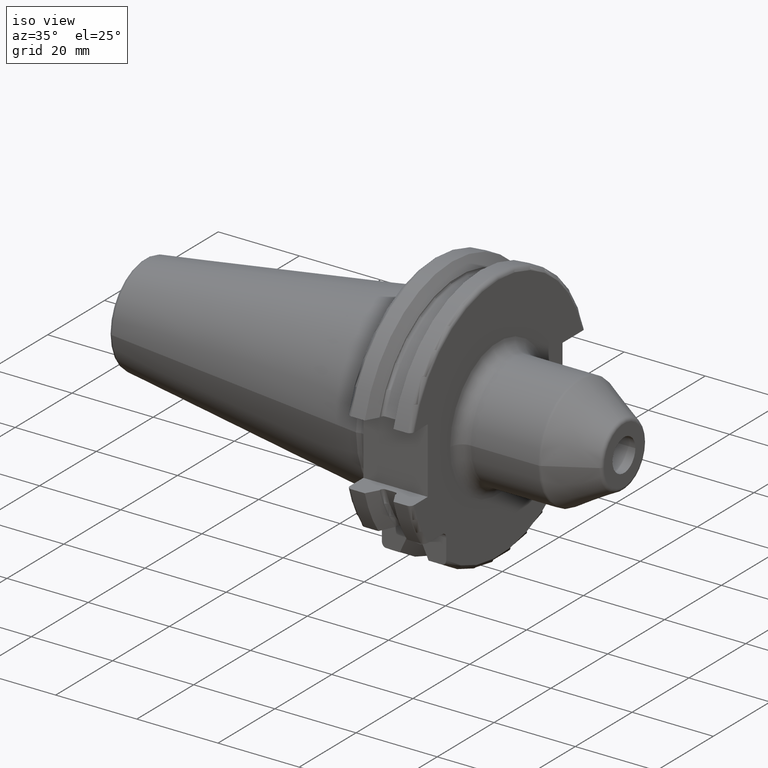
[diagram: clean part render]
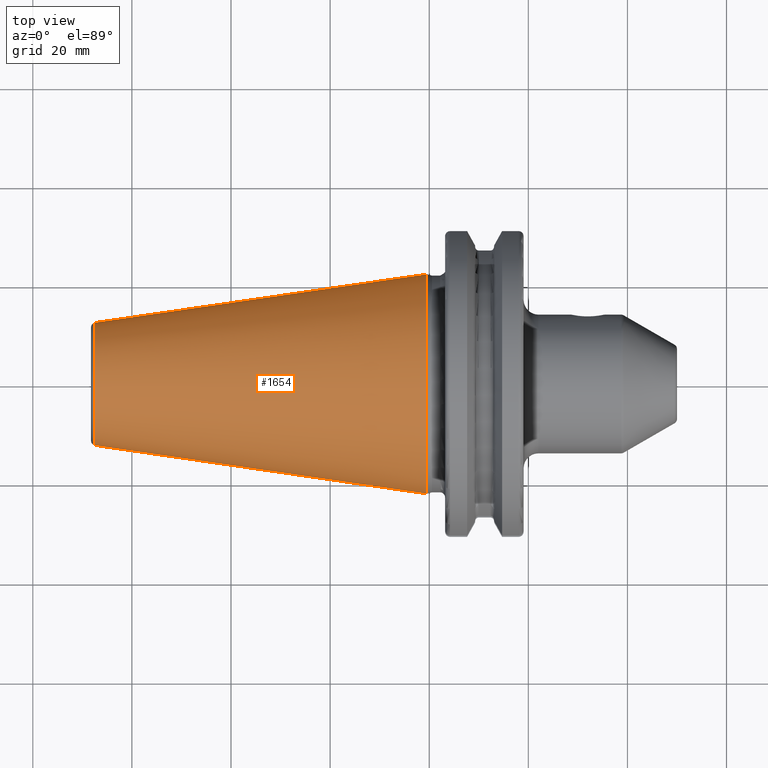
[diagram: tour spotlight — one face highlighted and labeled with its STEP entity id]
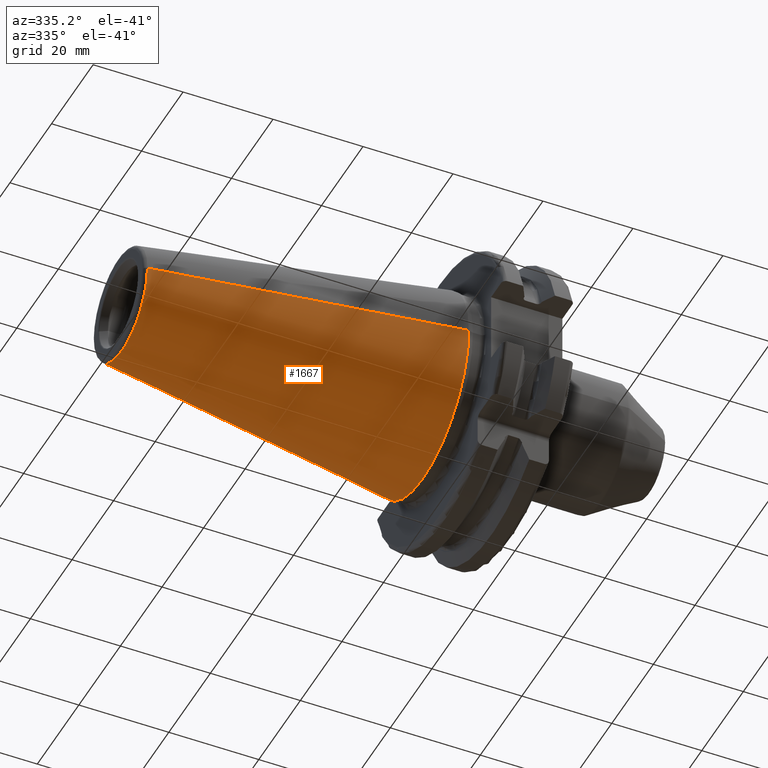
[diagram: tour spotlight — one face highlighted and labeled with its STEP entity id]
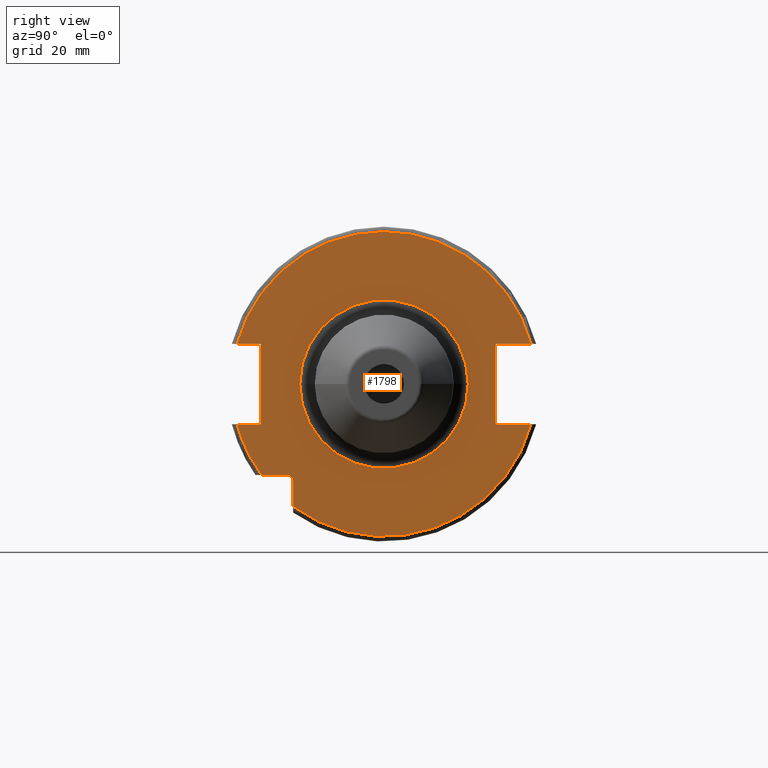
[diagram: tour spotlight — one face highlighted and labeled with its STEP entity id]
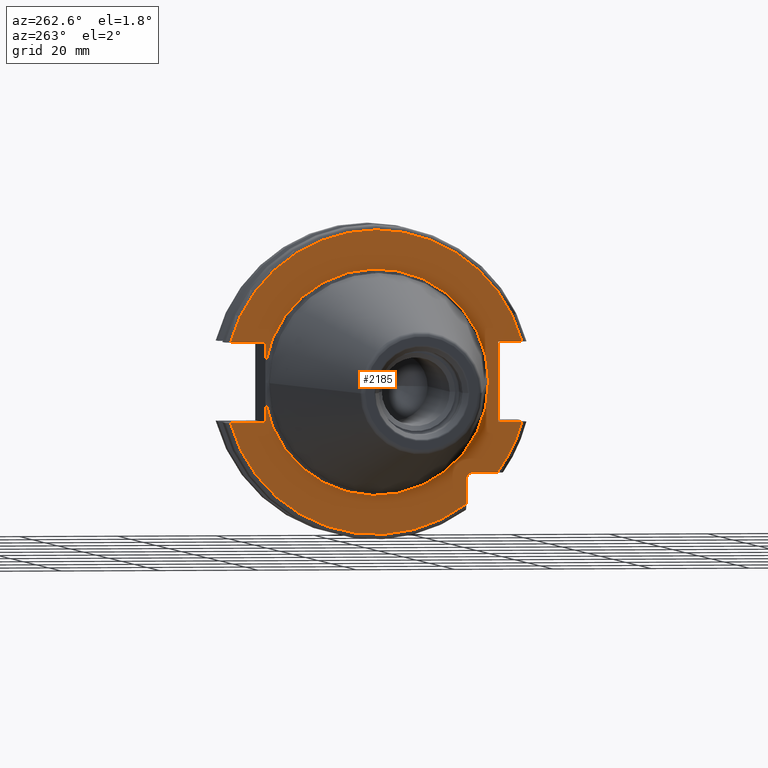
[diagram: tour spotlight — one face highlighted and labeled with its STEP entity id]
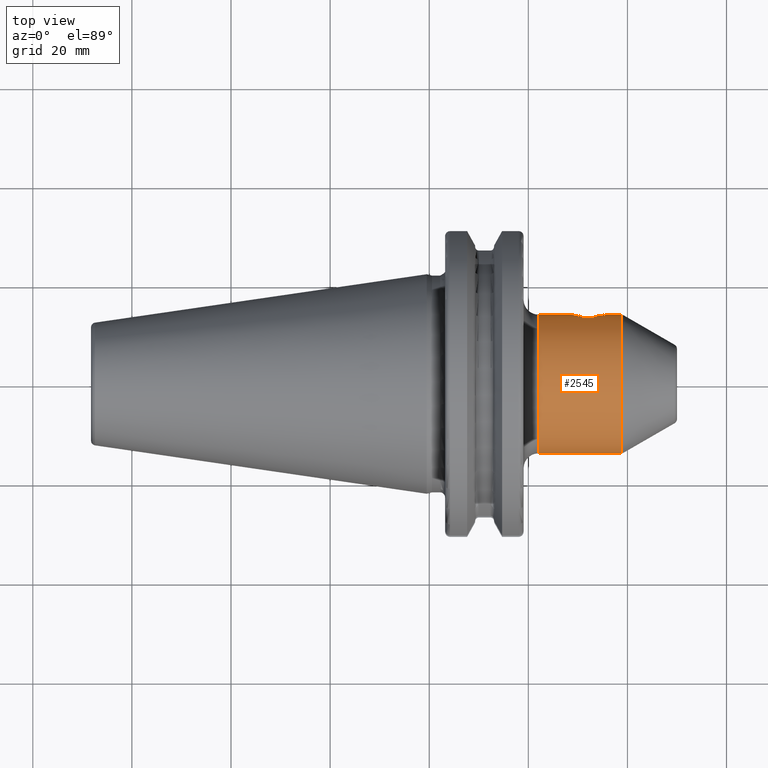
[diagram: tour spotlight — one face highlighted and labeled with its STEP entity id]
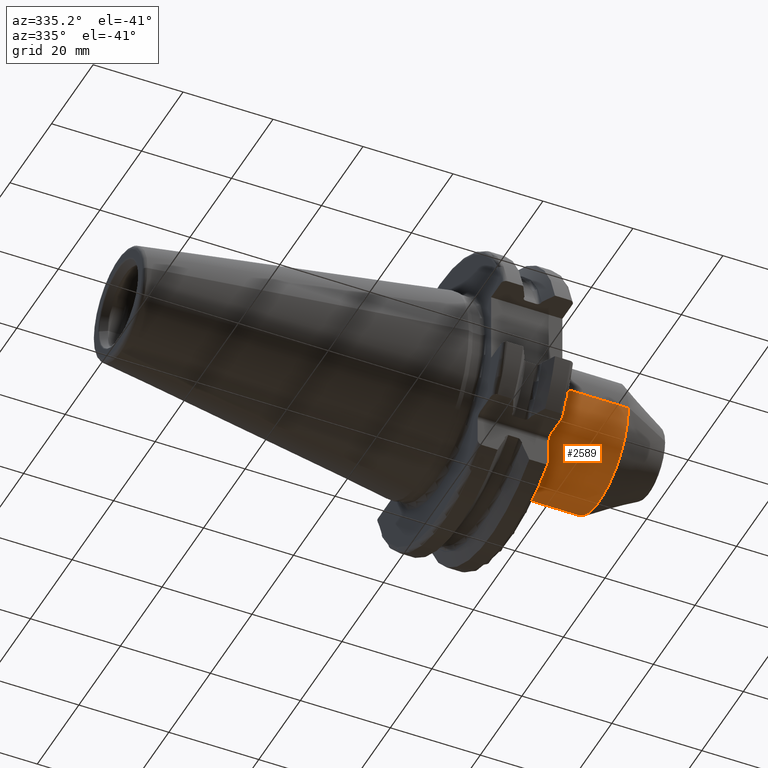
[diagram: tour spotlight — one face highlighted and labeled with its STEP entity id]
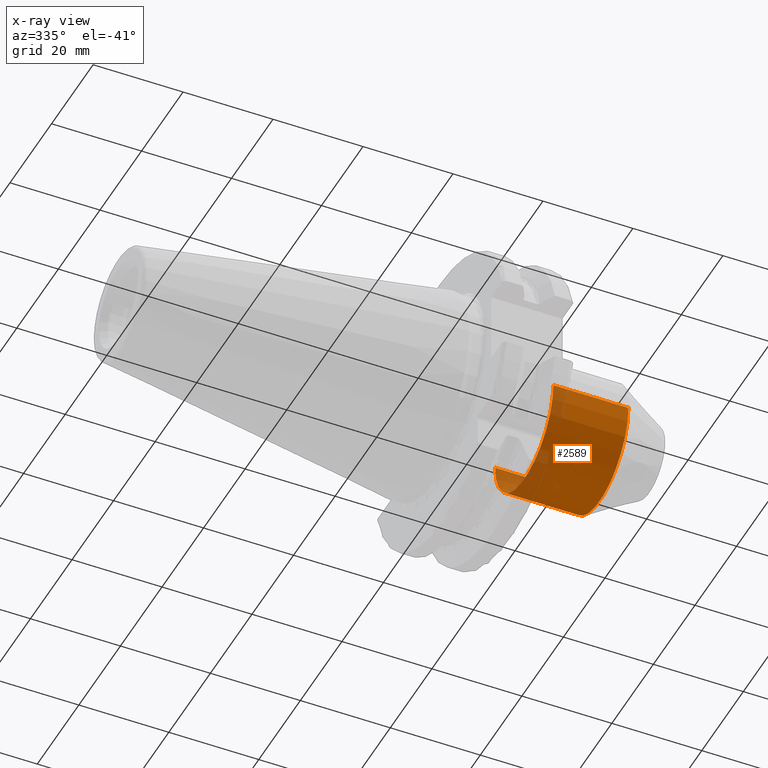
[diagram: x-ray of the same camera — body ghosted, this tour face saturated]
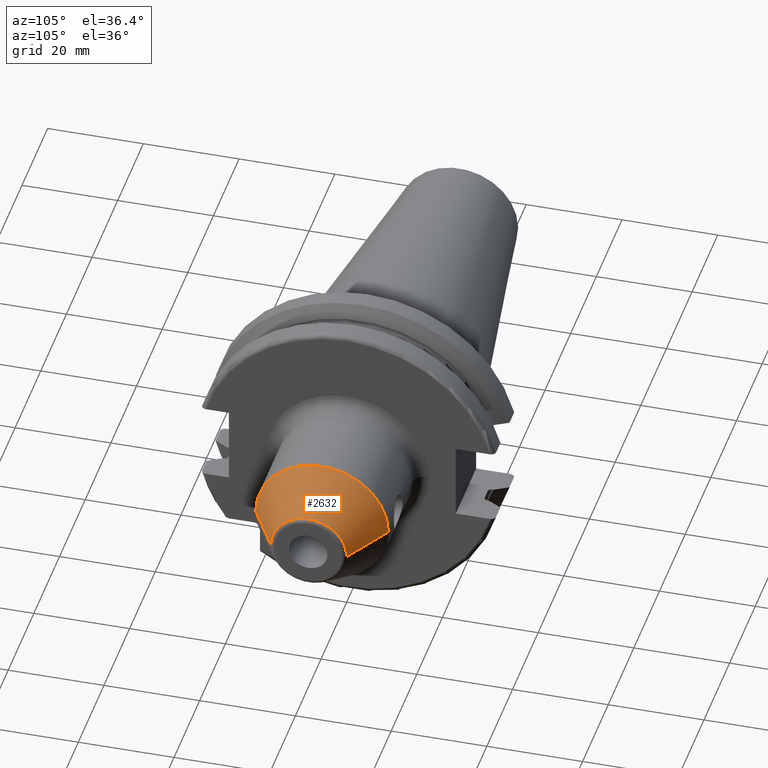
[diagram: tour spotlight — one face highlighted and labeled with its STEP entity id]
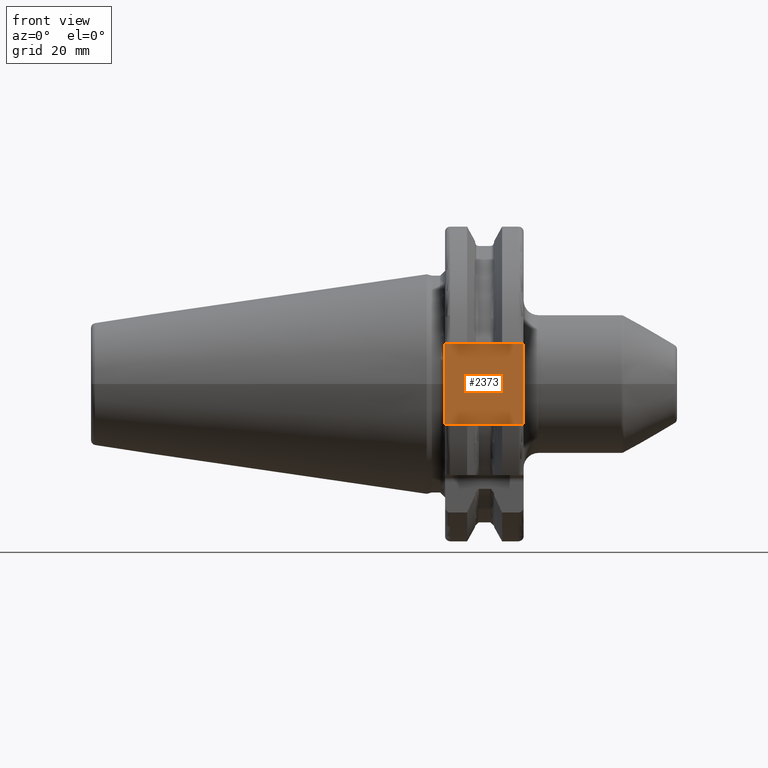
[diagram: tour spotlight — one face highlighted and labeled with its STEP entity id]
A machine part: a face-by-face anatomy tour. The part has 99 B-rep faces; the first image is the clean iso view, then the 8 largest visible faces are spotlighted one at a time (largest first), each with its STEP entity span.

Face 1 — top view, entity #1654. In plain terms, the highlighted conical surface has half-angle 8.298 deg.
Definition (entity closure, byte-faithful):
#37=CARTESIAN_POINT('',(-6.743710273571E1,0.E0,0.E0));
#38=DIRECTION('',(1.E0,0.E0,0.E0));
#39=DIRECTION('',(0.E0,1.E0,0.E0));
#40=AXIS2_PLACEMENT_3D('',#37,#38,#39);
#42=CARTESIAN_POINT('',(-4.896823332305E-1,0.E0,0.E0));
#43=DIRECTION('',(1.E0,0.E0,0.E0));
#44=DIRECTION('',(0.E0,1.E0,0.E0));
#45=AXIS2_PLACEMENT_3D('',#42,#43,#44);
#47=DIRECTION('',(-9.895312636440E-1,-1.443186691705E-1,0.E0));
#48=VECTOR('',#47,6.765568998391E1);
#49=CARTESIAN_POINT('',(-4.896823332305E-1,2.215358204157E1,0.E0));
#50=LINE('',#49,#48);
#51=DIRECTION('',(-9.895312636440E-1,1.443186691705E-1,0.E0));
#52=VECTOR('',#51,6.765568998391E1);
#53=CARTESIAN_POINT('',(-4.896823332305E-1,-2.215358204157E1,0.E0));
#54=LINE('',#53,#52);
#1330=CARTESIAN_POINT('',(-6.743710273571E1,1.238960290128E1,0.E0));
#1332=VERTEX_POINT('',#1330);
#1334=CARTESIAN_POINT('',(-6.743710273571E1,-1.238960290128E1,0.E0));
#1336=VERTEX_POINT('',#1334);
#1398=CARTESIAN_POINT('',(-4.896823332305E-1,2.215358204157E1,0.E0));
#1399=VERTEX_POINT('',#1398);
#1400=CARTESIAN_POINT('',(-4.896823332305E-1,-2.215358204157E1,0.E0));
#1401=VERTEX_POINT('',#1400);
#1640=CARTESIAN_POINT('',(-3.396339253447E1,0.E0,0.E0));
#1641=DIRECTION('',(1.E0,0.E0,0.E0));
#1642=DIRECTION('',(0.E0,-1.E0,0.E0));
#1643=AXIS2_PLACEMENT_3D('',#1640,#1641,#1642);
#1644=CONICAL_SURFACE('',#1643,1.727159247143E1,8.297826828206E0);
#1646=ORIENTED_EDGE('',*,*,#1645,.F.);
#1648=ORIENTED_EDGE('',*,*,#1647,.T.);
#1650=ORIENTED_EDGE('',*,*,#1649,.T.);
#1651=ORIENTED_EDGE('',*,*,#1633,.F.);
#1652=EDGE_LOOP('',(#1646,#1648,#1650,#1651));
#1653=FACE_OUTER_BOUND('',#1652,.F.);
#1654=ADVANCED_FACE('',(#1653),#1644,.T.);
#41=CIRCLE('',#40,1.238960290128E1);
#46=CIRCLE('',#45,2.215358204157E1);
#1633=EDGE_CURVE('',#1332,#1336,#41,.T.);
#1645=EDGE_CURVE('',#1399,#1332,#50,.T.);
#1647=EDGE_CURVE('',#1399,#1401,#46,.T.);
#1649=EDGE_CURVE('',#1401,#1336,#54,.T.);

Face 2 — auxiliary view, entity #1667. In plain terms, the highlighted conical surface has half-angle 8.298 deg.
Definition (entity closure, byte-faithful):
#32=CARTESIAN_POINT('',(-6.743710273571E1,0.E0,0.E0));
#33=DIRECTION('',(-1.E0,0.E0,0.E0));
#34=DIRECTION('',(0.E0,1.E0,0.E0));
#35=AXIS2_PLACEMENT_3D('',#32,#33,#34);
#47=DIRECTION('',(-9.895312636440E-1,-1.443186691705E-1,0.E0));
#48=VECTOR('',#47,6.765568998391E1);
#49=CARTESIAN_POINT('',(-4.896823332305E-1,2.215358204157E1,0.E0));
#50=LINE('',#49,#48);
#51=DIRECTION('',(-9.895312636440E-1,1.443186691705E-1,0.E0));
#52=VECTOR('',#51,6.765568998391E1);
#53=CARTESIAN_POINT('',(-4.896823332305E-1,-2.215358204157E1,0.E0));
#54=LINE('',#53,#52);
#55=CARTESIAN_POINT('',(-4.896823332305E-1,0.E0,0.E0));
#56=DIRECTION('',(-1.E0,0.E0,0.E0));
#57=DIRECTION('',(0.E0,1.E0,0.E0));
#58=AXIS2_PLACEMENT_3D('',#55,#56,#57);
#1330=CARTESIAN_POINT('',(-6.743710273571E1,1.238960290128E1,0.E0));
#1332=VERTEX_POINT('',#1330);
#1334=CARTESIAN_POINT('',(-6.743710273571E1,-1.238960290128E1,0.E0));
#1336=VERTEX_POINT('',#1334);
#1398=CARTESIAN_POINT('',(-4.896823332305E-1,2.215358204157E1,0.E0));
#1399=VERTEX_POINT('',#1398);
#1400=CARTESIAN_POINT('',(-4.896823332305E-1,-2.215358204157E1,0.E0));
#1401=VERTEX_POINT('',#1400);
#1655=CARTESIAN_POINT('',(-3.396339253447E1,0.E0,0.E0));
#1656=DIRECTION('',(1.E0,0.E0,0.E0));
#1657=DIRECTION('',(0.E0,-1.E0,0.E0));
#1658=AXIS2_PLACEMENT_3D('',#1655,#1656,#1657);
#1659=CONICAL_SURFACE('',#1658,1.727159247143E1,8.297826828206E0);
#1660=ORIENTED_EDGE('',*,*,#1645,.T.);
#1661=ORIENTED_EDGE('',*,*,#1622,.T.);
#1662=ORIENTED_EDGE('',*,*,#1649,.F.);
#1664=ORIENTED_EDGE('',*,*,#1663,.F.);
#1665=EDGE_LOOP('',(#1660,#1661,#1662,#1664));
#1666=FACE_OUTER_BOUND('',#1665,.F.);
#1667=ADVANCED_FACE('',(#1666),#1659,.T.);
#36=CIRCLE('',#35,1.238960290128E1);
#59=CIRCLE('',#58,2.215358204157E1);
#1622=EDGE_CURVE('',#1332,#1336,#36,.T.);
#1645=EDGE_CURVE('',#1399,#1332,#50,.T.);
#1649=EDGE_CURVE('',#1401,#1336,#54,.T.);
#1663=EDGE_CURVE('',#1399,#1401,#59,.T.);

Face 3 — right view, entity #1798. In plain terms, the highlighted planar face has unit normal (1, 0, 0).
Definition (entity closure, byte-faithful):
#126=DIRECTION('',(0.E0,0.E0,1.E0));
#127=VECTOR('',#126,4.990259339464E0);
#128=CARTESIAN_POINT('',(1.905E1,-1.835E1,-2.469025933946E1));
#129=LINE('',#128,#127);
#130=DIRECTION('',(0.E0,-1.E0,0.E0));
#131=VECTOR('',#130,4.990259339464E0);
#132=CARTESIAN_POINT('',(1.905E1,-1.97E1,-1.835E1));
#133=LINE('',#132,#131);
#134=DIRECTION('',(0.E0,1.E0,0.E0));
#135=VECTOR('',#134,4.826950757280E0);
#136=CARTESIAN_POINT('',(1.905E1,-2.967695075728E1,-8.1E0));
#137=LINE('',#136,#135);
#138=DIRECTION('',(0.E0,0.E0,1.E0));
#139=VECTOR('',#138,1.62E1);
#140=CARTESIAN_POINT('',(1.905E1,-2.485E1,-8.1E0));
#141=LINE('',#140,#139);
#142=DIRECTION('',(0.E0,1.E0,0.E0));
#143=VECTOR('',#142,4.826950757280E0);
#144=CARTESIAN_POINT('',(1.905E1,-2.967695075728E1,8.1E0));
#145=LINE('',#144,#143);
#146=DIRECTION('',(0.E0,-1.E0,0.E0));
#147=VECTOR('',#146,7.126950757280E0);
#148=CARTESIAN_POINT('',(1.905E1,2.967695075728E1,8.1E0));
#149=LINE('',#148,#147);
#150=DIRECTION('',(0.E0,0.E0,-1.E0));
#151=VECTOR('',#150,1.62E1);
#152=CARTESIAN_POINT('',(1.905E1,2.255E1,8.1E0));
#153=LINE('',#152,#151);
#154=DIRECTION('',(0.E0,-1.E0,0.E0));
#155=VECTOR('',#154,7.126950757280E0);
#156=CARTESIAN_POINT('',(1.905E1,2.967695075728E1,-8.1E0));
#157=LINE('',#156,#155);
#158=CARTESIAN_POINT('',(1.905E1,0.E0,0.E0));
#159=DIRECTION('',(1.E0,0.E0,0.E0));
#160=DIRECTION('',(0.E0,-1.E0,0.E0));
#161=AXIS2_PLACEMENT_3D('',#158,#159,#160);
#163=CARTESIAN_POINT('',(1.905E1,0.E0,0.E0));
#164=DIRECTION('',(1.E0,0.E0,0.E0));
#165=DIRECTION('',(0.E0,1.E0,0.E0));
#166=AXIS2_PLACEMENT_3D('',#163,#164,#165);
#194=CARTESIAN_POINT('',(1.905E1,0.E0,0.E0));
#195=DIRECTION('',(-1.E0,0.E0,0.E0));
#196=DIRECTION('',(0.E0,9.647119303464E-1,-2.633075985372E-1));
#197=AXIS2_PLACEMENT_3D('',#194,#195,#196);
#210=CARTESIAN_POINT('',(1.905E1,0.E0,0.E0));
#211=DIRECTION('',(-1.E0,0.E0,0.E0));
#212=DIRECTION('',(0.E0,-8.026089992512E-1,-5.965054855750E-1));
#213=AXIS2_PLACEMENT_3D('',#210,#211,#212);
#525=CARTESIAN_POINT('',(1.905E1,-1.97E1,-1.97E1));
#526=DIRECTION('',(-1.E0,0.E0,0.E0));
#527=DIRECTION('',(0.E0,0.E0,1.E0));
#528=AXIS2_PLACEMENT_3D('',#525,#526,#527);
#882=CARTESIAN_POINT('',(1.905E1,0.E0,0.E0));
#883=DIRECTION('',(1.E0,0.E0,0.E0));
#884=DIRECTION('',(0.E0,9.647119303464E-1,2.633075985372E-1));
#885=AXIS2_PLACEMENT_3D('',#882,#883,#884);
#1468=CARTESIAN_POINT('',(1.905E1,2.967695075728E1,8.1E0));
#1469=CARTESIAN_POINT('',(1.905E1,2.255E1,8.1E0));
#1470=VERTEX_POINT('',#1468);
#1471=VERTEX_POINT('',#1469);
#1472=CARTESIAN_POINT('',(1.905E1,2.255E1,-8.1E0));
#1473=VERTEX_POINT('',#1472);
#1474=CARTESIAN_POINT('',(1.905E1,2.967695075728E1,-8.1E0));
#1475=VERTEX_POINT('',#1474);
#1476=CARTESIAN_POINT('',(1.905E1,-2.967695075728E1,-8.1E0));
#1477=CARTESIAN_POINT('',(1.905E1,-2.485E1,-8.1E0));
#1478=VERTEX_POINT('',#1476);
#1479=VERTEX_POINT('',#1477);
#1480=CARTESIAN_POINT('',(1.905E1,-2.485E1,8.1E0));
#1481=VERTEX_POINT('',#1480);
#1482=CARTESIAN_POINT('',(1.905E1,-2.967695075728E1,8.1E0));
#1483=VERTEX_POINT('',#1482);
#1529=CARTESIAN_POINT('',(1.905E1,-1.835E1,-2.469025933946E1));
#1530=VERTEX_POINT('',#1529);
#1537=CARTESIAN_POINT('',(1.905E1,-1.97E1,-1.835E1));
#1538=CARTESIAN_POINT('',(1.905E1,-2.469025933946E1,-1.835E1));
#1539=VERTEX_POINT('',#1537);
#1540=VERTEX_POINT('',#1538);
#1541=CARTESIAN_POINT('',(1.905E1,-1.835E1,-1.97E1));
#1542=VERTEX_POINT('',#1541);
#1557=CARTESIAN_POINT('',(1.905E1,-1.7E1,0.E0));
#1558=CARTESIAN_POINT('',(1.905E1,1.7E1,0.E0));
#1559=VERTEX_POINT('',#1557);
#1560=VERTEX_POINT('',#1558);
#1762=CARTESIAN_POINT('',(1.905E1,0.E0,0.E0));
#1763=DIRECTION('',(1.E0,0.E0,0.E0));
#1764=DIRECTION('',(0.E0,-1.E0,0.E0));
#1765=AXIS2_PLACEMENT_3D('',#1762,#1763,#1764);
#1766=PLANE('',#1765);
#1768=ORIENTED_EDGE('',*,*,#1767,.T.);
#1770=ORIENTED_EDGE('',*,*,#1769,.F.);
#1772=ORIENTED_EDGE('',*,*,#1771,.T.);
#1774=ORIENTED_EDGE('',*,*,#1773,.T.);
#1776=ORIENTED_EDGE('',*,*,#1775,.T.);
#1778=ORIENTED_EDGE('',*,*,#1777,.T.);
#1780=ORIENTED_EDGE('',*,*,#1779,.F.);
#1782=ORIENTED_EDGE('',*,*,#1781,.F.);
#1784=ORIENTED_EDGE('',*,*,#1783,.T.);
#1785=ORIENTED_EDGE('',*,*,#1746,.T.);
#1787=ORIENTED_EDGE('',*,*,#1786,.F.);
#1789=ORIENTED_EDGE('',*,*,#1788,.T.);
#1790=EDGE_LOOP('',(#1768,#1770,#1772,#1774,#1776,#1778,#1780,#1782,#1784,#1785,
#1787,#1789));
#1791=FACE_OUTER_BOUND('',#1790,.F.);
#1793=ORIENTED_EDGE('',*,*,#1792,.T.);
#1795=ORIENTED_EDGE('',*,*,#1794,.T.);
#1796=EDGE_LOOP('',(#1793,#1795));
#1797=FACE_BOUND('',#1796,.F.);
#1798=ADVANCED_FACE('',(#1791,#1797),#1766,.T.);
#162=CIRCLE('',#161,1.7E1);
#167=CIRCLE('',#166,1.7E1);
#198=CIRCLE('',#197,3.07625E1);
#214=CIRCLE('',#213,3.07625E1);
#529=CIRCLE('',#528,1.35E0);
#886=CIRCLE('',#885,3.07625E1);
#1746=EDGE_CURVE('',#1471,#1473,#153,.T.);
#1767=EDGE_CURVE('',#1530,#1542,#129,.T.);
#1769=EDGE_CURVE('',#1539,#1542,#529,.T.);
#1771=EDGE_CURVE('',#1539,#1540,#133,.T.);
#1773=EDGE_CURVE('',#1540,#1478,#214,.T.);
#1775=EDGE_CURVE('',#1478,#1479,#137,.T.);
#1777=EDGE_CURVE('',#1479,#1481,#141,.T.);
#1779=EDGE_CURVE('',#1483,#1481,#145,.T.);
#1781=EDGE_CURVE('',#1470,#1483,#886,.T.);
#1783=EDGE_CURVE('',#1470,#1471,#149,.T.);
#1786=EDGE_CURVE('',#1475,#1473,#157,.T.);
#1788=EDGE_CURVE('',#1475,#1530,#198,.T.);
#1792=EDGE_CURVE('',#1559,#1560,#162,.T.);
#1794=EDGE_CURVE('',#1560,#1559,#167,.T.);

Face 4 — auxiliary view, entity #2185. In plain terms, the highlighted planar face has unit normal (1, 0, 0).
Definition (entity closure, byte-faithful):
#117=CARTESIAN_POINT('',(3.2E0,0.E0,0.E0));
#118=DIRECTION('',(-1.E0,0.E0,0.E0));
#119=DIRECTION('',(0.E0,9.857923497268E-1,-1.679685780739E-1));
#120=AXIS2_PLACEMENT_3D('',#117,#118,#119);
#470=DIRECTION('',(0.E0,-1.E0,0.E0));
#471=VECTOR('',#470,4.990259339464E0);
#472=CARTESIAN_POINT('',(3.2E0,-1.97E1,-1.835E1));
#473=LINE('',#472,#471);
#474=DIRECTION('',(0.E0,0.E0,1.E0));
#475=VECTOR('',#474,4.990259339464E0);
#476=CARTESIAN_POINT('',(3.2E0,-1.835E1,-2.469025933946E1));
#477=LINE('',#476,#475);
#478=CARTESIAN_POINT('',(3.2E0,0.E0,0.E0));
#479=DIRECTION('',(-1.E0,0.E0,0.E0));
#480=DIRECTION('',(0.E0,9.647119303464E-1,-2.633075985372E-1));
#481=AXIS2_PLACEMENT_3D('',#478,#479,#480);
#483=DIRECTION('',(0.E0,-1.E0,0.E0));
#484=VECTOR('',#483,7.126950757280E0);
#485=CARTESIAN_POINT('',(3.2E0,2.967695075728E1,-8.1E0));
#486=LINE('',#485,#484);
#487=DIRECTION('',(0.E0,0.E0,-1.E0));
#488=VECTOR('',#487,4.257718776560E0);
#489=CARTESIAN_POINT('',(3.2E0,2.255E1,-3.842281223440E0));
#490=LINE('',#489,#488);
#491=DIRECTION('',(0.E0,0.E0,-1.E0));
#492=VECTOR('',#491,4.257718776560E0);
#493=CARTESIAN_POINT('',(3.2E0,2.255E1,8.1E0));
#494=LINE('',#493,#492);
#495=DIRECTION('',(0.E0,-1.E0,0.E0));
#496=VECTOR('',#495,7.126950757280E0);
#497=CARTESIAN_POINT('',(3.2E0,2.967695075728E1,8.1E0));
#498=LINE('',#497,#496);
#499=CARTESIAN_POINT('',(3.2E0,0.E0,0.E0));
#500=DIRECTION('',(1.E0,0.E0,0.E0));
#501=DIRECTION('',(0.E0,9.647119303464E-1,2.633075985372E-1));
#502=AXIS2_PLACEMENT_3D('',#499,#500,#501);
#504=DIRECTION('',(0.E0,1.E0,0.E0));
#505=VECTOR('',#504,4.826950757280E0);
#506=CARTESIAN_POINT('',(3.2E0,-2.967695075728E1,8.1E0));
#507=LINE('',#506,#505);
#508=DIRECTION('',(0.E0,0.E0,1.E0));
#509=VECTOR('',#508,1.62E1);
#510=CARTESIAN_POINT('',(3.2E0,-2.485E1,-8.1E0));
#511=LINE('',#510,#509);
#512=DIRECTION('',(0.E0,1.E0,0.E0));
#513=VECTOR('',#512,4.826950757280E0);
#514=CARTESIAN_POINT('',(3.2E0,-2.967695075728E1,-8.1E0));
#515=LINE('',#514,#513);
#516=CARTESIAN_POINT('',(3.2E0,0.E0,0.E0));
#517=DIRECTION('',(-1.E0,0.E0,0.E0));
#518=DIRECTION('',(0.E0,-8.026089992512E-1,-5.965054855750E-1));
#519=AXIS2_PLACEMENT_3D('',#516,#517,#518);
#530=CARTESIAN_POINT('',(3.2E0,-1.97E1,-1.97E1));
#531=DIRECTION('',(1.E0,0.E0,0.E0));
#532=DIRECTION('',(0.E0,1.E0,0.E0));
#533=AXIS2_PLACEMENT_3D('',#530,#531,#532);
#866=CARTESIAN_POINT('',(3.2E0,0.E0,0.E0));
#867=DIRECTION('',(1.E0,0.E0,0.E0));
#868=DIRECTION('',(0.E0,9.857923497268E-1,1.679685780739E-1));
#869=AXIS2_PLACEMENT_3D('',#866,#867,#868);
#1342=CARTESIAN_POINT('',(3.2E0,-2.2875E1,0.E0));
#1344=VERTEX_POINT('',#1342);
#1492=CARTESIAN_POINT('',(3.2E0,2.967695075728E1,8.1E0));
#1493=CARTESIAN_POINT('',(3.2E0,2.255E1,8.1E0));
#1494=VERTEX_POINT('',#1492);
#1495=VERTEX_POINT('',#1493);
#1496=CARTESIAN_POINT('',(3.2E0,2.255E1,3.842281223440E0));
#1497=VERTEX_POINT('',#1496);
#1498=CARTESIAN_POINT('',(3.2E0,2.255E1,-3.842281223440E0));
#1499=CARTESIAN_POINT('',(3.2E0,2.255E1,-8.1E0));
#1500=VERTEX_POINT('',#1498);
#1501=VERTEX_POINT('',#1499);
#1502=CARTESIAN_POINT('',(3.2E0,2.967695075728E1,-8.1E0));
#1503=VERTEX_POINT('',#1502);
#1504=CARTESIAN_POINT('',(3.2E0,-2.967695075728E1,-8.1E0));
#1505=CARTESIAN_POINT('',(3.2E0,-2.485E1,-8.1E0));
#1506=VERTEX_POINT('',#1504);
#1507=VERTEX_POINT('',#1505);
#1508=CARTESIAN_POINT('',(3.2E0,-2.485E1,8.1E0));
#1509=VERTEX_POINT('',#1508);
#1510=CARTESIAN_POINT('',(3.2E0,-2.967695075728E1,8.1E0));
#1511=VERTEX_POINT('',#1510);
#1535=CARTESIAN_POINT('',(3.2E0,-1.835E1,-2.469025933946E1));
#1536=VERTEX_POINT('',#1535);
#1543=CARTESIAN_POINT('',(3.2E0,-1.97E1,-1.835E1));
#1544=CARTESIAN_POINT('',(3.2E0,-2.469025933946E1,-1.835E1));
#1545=VERTEX_POINT('',#1543);
#1546=VERTEX_POINT('',#1544);
#1547=CARTESIAN_POINT('',(3.2E0,-1.835E1,-1.97E1));
#1548=VERTEX_POINT('',#1547);
#2156=CARTESIAN_POINT('',(3.2E0,0.E0,0.E0));
#2157=DIRECTION('',(1.E0,0.E0,0.E0));
#2158=DIRECTION('',(0.E0,-1.E0,0.E0));
#2159=AXIS2_PLACEMENT_3D('',#2156,#2157,#2158);
#2160=PLANE('',#2159);
#2162=ORIENTED_EDGE('',*,*,#2161,.F.);
#2164=ORIENTED_EDGE('',*,*,#2163,.F.);
#2165=ORIENTED_EDGE('',*,*,#1827,.F.);
#2167=ORIENTED_EDGE('',*,*,#2166,.F.);
#2168=ORIENTED_EDGE('',*,*,#1885,.T.);
#2169=ORIENTED_EDGE('',*,*,#1755,.F.);
#2170=ORIENTED_EDGE('',*,*,#1736,.T.);
#2172=ORIENTED_EDGE('',*,*,#2171,.F.);
#2173=ORIENTED_EDGE('',*,*,#1750,.F.);
#2174=ORIENTED_EDGE('',*,*,#1954,.F.);
#2175=ORIENTED_EDGE('',*,*,#2151,.T.);
#2176=ORIENTED_EDGE('',*,*,#2012,.T.);
#2178=ORIENTED_EDGE('',*,*,#2177,.F.);
#2180=ORIENTED_EDGE('',*,*,#2179,.F.);
#2182=ORIENTED_EDGE('',*,*,#2181,.F.);
#2183=EDGE_LOOP('',(#2162,#2164,#2165,#2167,#2168,#2169,#2170,#2172,#2173,#2174,
#2175,#2176,#2178,#2180,#2182));
#2184=FACE_OUTER_BOUND('',#2183,.F.);
#2185=ADVANCED_FACE('',(#2184),#2160,.F.);
#121=CIRCLE('',#120,2.2875E1);
#482=CIRCLE('',#481,3.07625E1);
#503=CIRCLE('',#502,3.07625E1);
#520=CIRCLE('',#519,3.07625E1);
#534=CIRCLE('',#533,1.35E0);
#870=CIRCLE('',#869,2.2875E1);
#1736=EDGE_CURVE('',#1500,#1344,#121,.T.);
#1750=EDGE_CURVE('',#1495,#1497,#494,.T.);
#1755=EDGE_CURVE('',#1500,#1501,#490,.T.);
#1827=EDGE_CURVE('',#1536,#1548,#477,.T.);
#1885=EDGE_CURVE('',#1503,#1501,#486,.T.);
#1954=EDGE_CURVE('',#1494,#1495,#498,.T.);
#2012=EDGE_CURVE('',#1511,#1509,#507,.T.);
#2151=EDGE_CURVE('',#1494,#1511,#503,.T.);
#2161=EDGE_CURVE('',#1545,#1546,#473,.T.);
#2163=EDGE_CURVE('',#1548,#1545,#534,.T.);
#2166=EDGE_CURVE('',#1503,#1536,#482,.T.);
#2171=EDGE_CURVE('',#1497,#1344,#870,.T.);
#2177=EDGE_CURVE('',#1507,#1509,#511,.T.);
#2179=EDGE_CURVE('',#1506,#1507,#515,.T.);
#2181=EDGE_CURVE('',#1546,#1506,#520,.T.);

Face 5 — top view, entity #2545. In plain terms, the highlighted cylindrical surface (partial cylindrical patch) has radius 14 mm, axis along (1, 0, 0).
Definition (entity closure, byte-faithful):
#908=CARTESIAN_POINT('',(3.54E1,1.4E1,0.E0));
#909=CARTESIAN_POINT('',(3.54E1,1.4E1,2.234663928254E-1));
#910=CARTESIAN_POINT('',(3.535690579177E1,1.398943916999E1,6.613880429697E-1));
#911=CARTESIAN_POINT('',(3.516433245491E1,1.394393693800E1,1.302119967977E0));
#912=CARTESIAN_POINT('',(3.485273694762E1,1.387572802722E1,1.888826979039E0));
#913=CARTESIAN_POINT('',(3.443518143324E1,1.379494217917E1,2.403308924787E0));
#914=CARTESIAN_POINT('',(3.392572013209E1,1.371313662374E1,2.828091907579E0));
#915=CARTESIAN_POINT('',(3.334087213627E1,1.364227938985E1,3.148310873040E0));
#916=CARTESIAN_POINT('',(3.269590046968E1,1.359327310121E1,3.350932228672E0));
#917=CARTESIAN_POINT('',(3.202086123060E1,1.357521469849E1,3.422348706081E0));
#918=CARTESIAN_POINT('',(3.134649533929E1,1.359117865766E1,3.359284808760E0));
#919=CARTESIAN_POINT('',(3.070001353055E1,1.363823300173E1,3.165582114102E0));
#920=CARTESIAN_POINT('',(3.010574540641E1,1.370860422510E1,2.849874889882E0));
#921=CARTESIAN_POINT('',(2.958584806656E1,1.379113448304E1,2.425203157169E0));
#922=CARTESIAN_POINT('',(2.915902370682E1,1.387324760617E1,1.907354572974E0));
#923=CARTESIAN_POINT('',(2.884105980254E1,1.394268494139E1,1.316311772850E0));
#924=CARTESIAN_POINT('',(2.864413461321E1,1.398918138196E1,6.691509594724E-1));
#925=CARTESIAN_POINT('',(2.86E1,1.4E1,2.262076179452E-1));
#926=CARTESIAN_POINT('',(2.86E1,1.4E1,0.E0));
#928=CARTESIAN_POINT('',(3.873205080757E1,0.E0,0.E0));
#929=DIRECTION('',(-1.E0,0.E0,0.E0));
#930=DIRECTION('',(0.E0,-1.E0,0.E0));
#931=AXIS2_PLACEMENT_3D('',#928,#929,#930);
#933=CARTESIAN_POINT('',(2.205E1,0.E0,0.E0));
#934=DIRECTION('',(1.E0,0.E0,0.E0));
#935=DIRECTION('',(0.E0,1.E0,0.E0));
#936=AXIS2_PLACEMENT_3D('',#933,#934,#935);
#966=DIRECTION('',(-1.E0,0.E0,7.130937062213E-13));
#967=VECTOR('',#966,6.55E0);
#968=CARTESIAN_POINT('',(2.86E1,1.4E1,0.E0));
#969=LINE('',#968,#967);
#975=DIRECTION('',(-1.E0,0.E0,-6.578225718247E-13));
#976=VECTOR('',#975,1.668205080757E1);
#977=CARTESIAN_POINT('',(3.873205080757E1,-1.4E1,6.301779910657E-12));
#978=LINE('',#977,#976);
#984=DIRECTION('',(-1.E0,0.E0,1.894447418621E-12));
#985=VECTOR('',#984,3.332050807569E0);
#986=CARTESIAN_POINT('',(3.873205080757E1,1.4E1,-6.311537798352E-12));
#987=LINE('',#986,#985);
#1561=CARTESIAN_POINT('',(2.205E1,-1.4E1,0.E0));
#1562=CARTESIAN_POINT('',(2.205E1,1.4E1,0.E0));
#1563=VERTEX_POINT('',#1561);
#1564=VERTEX_POINT('',#1562);
#1565=CARTESIAN_POINT('',(3.873205080757E1,1.4E1,0.E0));
#1566=CARTESIAN_POINT('',(3.873205080757E1,-1.4E1,0.E0));
#1567=VERTEX_POINT('',#1565);
#1568=VERTEX_POINT('',#1566);
#1590=VERTEX_POINT('',#908);
#1591=VERTEX_POINT('',#926);
#2527=CARTESIAN_POINT('',(1.75025E1,0.E0,0.E0));
#2528=DIRECTION('',(1.E0,0.E0,0.E0));
#2529=DIRECTION('',(0.E0,-1.E0,0.E0));
#2530=AXIS2_PLACEMENT_3D('',#2527,#2528,#2529);
#2531=CYLINDRICAL_SURFACE('',#2530,1.4E1);
#2533=ORIENTED_EDGE('',*,*,#2532,.F.);
#2535=ORIENTED_EDGE('',*,*,#2534,.F.);
#2537=ORIENTED_EDGE('',*,*,#2536,.F.);
#2539=ORIENTED_EDGE('',*,*,#2538,.T.);
#2540=ORIENTED_EDGE('',*,*,#2521,.F.);
#2542=ORIENTED_EDGE('',*,*,#2541,.F.);
#2543=EDGE_LOOP('',(#2533,#2535,#2537,#2539,#2540,#2542));
#2544=FACE_OUTER_BOUND('',#2543,.F.);
#2545=ADVANCED_FACE('',(#2544),#2531,.T.);
#927=B_SPLINE_CURVE_WITH_KNOTS('',3,(#908,#909,#910,#911,#912,#913,#914,#915,
#916,#917,#918,#919,#920,#921,#922,#923,#924,#925,#926),.UNSPECIFIED.,.F.,.F.,
(4,1,1,1,1,1,1,1,1,1,1,1,1,1,1,1,4),(0.E0,6.25E-2,1.25E-1,1.875E-1,2.5E-1,
3.125E-1,3.75E-1,4.375E-1,5.E-1,5.625E-1,6.25E-1,6.875E-1,7.5E-1,8.125E-1,
8.75E-1,9.375E-1,1.E0),.UNSPECIFIED.);
#932=CIRCLE('',#931,1.4E1);
#937=CIRCLE('',#936,1.4E1);
#2521=EDGE_CURVE('',#1564,#1563,#937,.T.);
#2532=EDGE_CURVE('',#1590,#1591,#927,.T.);
#2534=EDGE_CURVE('',#1567,#1590,#987,.T.);
#2536=EDGE_CURVE('',#1568,#1567,#932,.T.);
#2538=EDGE_CURVE('',#1568,#1563,#978,.T.);
#2541=EDGE_CURVE('',#1591,#1564,#969,.T.);

Face 6 — auxiliary view, entity #2589. An x-ray twin of the same camera follows (body ghosted, this face saturated) — the face is partly hidden behind the body. In plain terms, the highlighted cylindrical surface (partial cylindrical patch) has radius 14 mm, axis along (1, 0, 0).
Definition (entity closure, byte-faithful):
#908=CARTESIAN_POINT('',(3.54E1,1.4E1,0.E0));
#926=CARTESIAN_POINT('',(2.86E1,1.4E1,0.E0));
#946=CARTESIAN_POINT('',(2.86E1,1.4E1,0.E0));
#947=CARTESIAN_POINT('',(2.86E1,1.4E1,-2.231001979338E-1));
#948=CARTESIAN_POINT('',(2.864295733936E1,1.398947314815E1,-6.603566059928E-1));
#949=CARTESIAN_POINT('',(2.883495603790E1,1.394410199212E1,-1.300245666416E0));
#950=CARTESIAN_POINT('',(2.914575417374E1,1.387604716193E1,-1.886423879204E0));
#951=CARTESIAN_POINT('',(2.956198176123E1,1.379545957016E1,-2.400304900530E0));
#952=CARTESIAN_POINT('',(3.006981795152E1,1.371378758857E1,-2.824943413591E0));
#953=CARTESIAN_POINT('',(3.065319965082E1,1.364287467032E1,-3.145763461778E0));
#954=CARTESIAN_POINT('',(3.129833765250E1,1.359355773411E1,-3.349798573963E0));
#955=CARTESIAN_POINT('',(3.197425366238E1,1.357520824600E1,-3.422373565102E0));
#956=CARTESIAN_POINT('',(3.264939700879E1,1.359097056093E1,-3.360116402748E0));
#957=CARTESIAN_POINT('',(3.329656130228E1,1.363789487853E1,-3.167024982978E0));
#958=CARTESIAN_POINT('',(3.389171319435E1,1.370824113475E1,-2.851613599233E0));
#959=CARTESIAN_POINT('',(3.441243564193E1,1.379082538741E1,-2.426968057021E0));
#960=CARTESIAN_POINT('',(3.483999135704E1,1.387304034822E1,-1.908892753595E0));
#961=CARTESIAN_POINT('',(3.515850067241E1,1.394258281112E1,-1.317468230275E0));
#962=CARTESIAN_POINT('',(3.535578258924E1,1.398916088215E1,-6.697699748033E-1));
#963=CARTESIAN_POINT('',(3.54E1,1.4E1,-2.264241499871E-1));
#964=CARTESIAN_POINT('',(3.54E1,1.4E1,0.E0));
#966=DIRECTION('',(-1.E0,0.E0,7.130937062213E-13));
#967=VECTOR('',#966,6.55E0);
#968=CARTESIAN_POINT('',(2.86E1,1.4E1,0.E0));
#969=LINE('',#968,#967);
#970=CARTESIAN_POINT('',(2.205E1,0.E0,0.E0));
#971=DIRECTION('',(1.E0,0.E0,0.E0));
#972=DIRECTION('',(0.E0,-1.E0,0.E0));
#973=AXIS2_PLACEMENT_3D('',#970,#971,#972);
#975=DIRECTION('',(-1.E0,0.E0,-6.578225718247E-13));
#976=VECTOR('',#975,1.668205080757E1);
#977=CARTESIAN_POINT('',(3.873205080757E1,-1.4E1,6.301779910657E-12));
#978=LINE('',#977,#976);
#979=CARTESIAN_POINT('',(3.873205080757E1,0.E0,0.E0));
#980=DIRECTION('',(-1.E0,0.E0,0.E0));
#981=DIRECTION('',(0.E0,1.E0,0.E0));
#982=AXIS2_PLACEMENT_3D('',#979,#980,#981);
#984=DIRECTION('',(-1.E0,0.E0,1.894447418621E-12));
#985=VECTOR('',#984,3.332050807569E0);
#986=CARTESIAN_POINT('',(3.873205080757E1,1.4E1,-6.311537798352E-12));
#987=LINE('',#986,#985);
#1561=CARTESIAN_POINT('',(2.205E1,-1.4E1,0.E0));
#1562=CARTESIAN_POINT('',(2.205E1,1.4E1,0.E0));
#1563=VERTEX_POINT('',#1561);
#1564=VERTEX_POINT('',#1562);
#1565=CARTESIAN_POINT('',(3.873205080757E1,1.4E1,0.E0));
#1566=CARTESIAN_POINT('',(3.873205080757E1,-1.4E1,0.E0));
#1567=VERTEX_POINT('',#1565);
#1568=VERTEX_POINT('',#1566);
#1590=VERTEX_POINT('',#908);
#1591=VERTEX_POINT('',#926);
#2575=CARTESIAN_POINT('',(1.75025E1,0.E0,0.E0));
#2576=DIRECTION('',(1.E0,0.E0,0.E0));
#2577=DIRECTION('',(0.E0,-1.E0,0.E0));
#2578=AXIS2_PLACEMENT_3D('',#2575,#2576,#2577);
#2579=CYLINDRICAL_SURFACE('',#2578,1.4E1);
#2580=ORIENTED_EDGE('',*,*,#2566,.F.);
#2581=ORIENTED_EDGE('',*,*,#2541,.T.);
#2582=ORIENTED_EDGE('',*,*,#2507,.F.);
#2583=ORIENTED_EDGE('',*,*,#2538,.F.);
#2585=ORIENTED_EDGE('',*,*,#2584,.F.);
#2586=ORIENTED_EDGE('',*,*,#2534,.T.);
#2587=EDGE_LOOP('',(#2580,#2581,#2582,#2583,#2585,#2586));
#2588=FACE_OUTER_BOUND('',#2587,.F.);
#2589=ADVANCED_FACE('',(#2588),#2579,.T.);
#965=B_SPLINE_CURVE_WITH_KNOTS('',3,(#946,#947,#948,#949,#950,#951,#952,#953,
#954,#955,#956,#957,#958,#959,#960,#961,#962,#963,#964),.UNSPECIFIED.,.F.,.F.,
(4,1,1,1,1,1,1,1,1,1,1,1,1,1,1,1,4),(0.E0,6.25E-2,1.25E-1,1.875E-1,2.5E-1,
3.125E-1,3.75E-1,4.375E-1,5.E-1,5.625E-1,6.25E-1,6.875E-1,7.5E-1,8.125E-1,
8.75E-1,9.375E-1,1.E0),.UNSPECIFIED.);
#974=CIRCLE('',#973,1.4E1);
#983=CIRCLE('',#982,1.4E1);
#2507=EDGE_CURVE('',#1563,#1564,#974,.T.);
#2534=EDGE_CURVE('',#1567,#1590,#987,.T.);
#2538=EDGE_CURVE('',#1568,#1563,#978,.T.);
#2541=EDGE_CURVE('',#1591,#1564,#969,.T.);
#2566=EDGE_CURVE('',#1591,#1590,#965,.T.);
#2584=EDGE_CURVE('',#1567,#1568,#983,.T.);

Face 7 — auxiliary view, entity #2632. In plain terms, the highlighted conical surface has half-angle 30 deg.
Definition (entity closure, byte-faithful):
#998=CARTESIAN_POINT('',(3.923205080757E1,0.E0,0.E0));
#999=DIRECTION('',(-1.E0,0.E0,0.E0));
#1000=DIRECTION('',(0.E0,-1.E0,0.E0));
#1001=AXIS2_PLACEMENT_3D('',#998,#999,#1000);
#1003=CARTESIAN_POINT('',(4.95E1,0.E0,0.E0));
#1004=DIRECTION('',(-1.E0,0.E0,0.E0));
#1005=DIRECTION('',(0.E0,-1.E0,0.E0));
#1006=AXIS2_PLACEMENT_3D('',#1003,#1004,#1005);
#1013=DIRECTION('',(-8.660254037844E-1,-5.E-1,1.213730320479E-13));
#1014=VECTOR('',#1013,1.185640646055E1);
#1015=CARTESIAN_POINT('',(4.95E1,-7.937822173508E0,2.584709730351E-12));
#1016=LINE('',#1015,#1014);
#1022=DIRECTION('',(-8.660254037844E-1,5.E-1,-1.214081544006E-13));
#1023=VECTOR('',#1022,1.185640646055E1);
#1024=CARTESIAN_POINT('',(4.95E1,7.937822173508E0,-2.586715235115E-12));
#1025=LINE('',#1024,#1023);
#1569=CARTESIAN_POINT('',(3.923205080757E1,1.386602540378E1,0.E0));
#1570=CARTESIAN_POINT('',(3.923205080757E1,-1.386602540378E1,0.E0));
#1571=VERTEX_POINT('',#1569);
#1572=VERTEX_POINT('',#1570);
#1573=CARTESIAN_POINT('',(4.95E1,7.937822173509E0,0.E0));
#1574=CARTESIAN_POINT('',(4.95E1,-7.937822173509E0,0.E0));
#1575=VERTEX_POINT('',#1573);
#1576=VERTEX_POINT('',#1574);
#2618=CARTESIAN_POINT('',(4.436602540378E1,0.E0,0.E0));
#2619=DIRECTION('',(-1.E0,0.E0,0.E0));
#2620=DIRECTION('',(0.E0,1.E0,0.E0));
#2621=AXIS2_PLACEMENT_3D('',#2618,#2619,#2620);
#2622=CONICAL_SURFACE('',#2621,1.090192378865E1,3.E1);
#2623=ORIENTED_EDGE('',*,*,#2612,.T.);
#2625=ORIENTED_EDGE('',*,*,#2624,.F.);
#2627=ORIENTED_EDGE('',*,*,#2626,.F.);
#2629=ORIENTED_EDGE('',*,*,#2628,.T.);
#2630=EDGE_LOOP('',(#2623,#2625,#2627,#2629));
#2631=FACE_OUTER_BOUND('',#2630,.F.);
#2632=ADVANCED_FACE('',(#2631),#2622,.T.);
#1002=CIRCLE('',#1001,1.386602540378E1);
#1007=CIRCLE('',#1006,7.937822173509E0);
#2612=EDGE_CURVE('',#1572,#1571,#1002,.T.);
#2624=EDGE_CURVE('',#1575,#1571,#1025,.T.);
#2626=EDGE_CURVE('',#1576,#1575,#1007,.T.);
#2628=EDGE_CURVE('',#1576,#1572,#1016,.T.);

Face 8 — front view, entity #2373. In plain terms, the highlighted planar face has unit normal (0, 1, 0).
Definition (entity closure, byte-faithful):
#138=DIRECTION('',(0.E0,0.E0,1.E0));
#139=VECTOR('',#138,1.62E1);
#140=CARTESIAN_POINT('',(1.905E1,-2.485E1,-8.1E0));
#141=LINE('',#140,#139);
#283=DIRECTION('',(-1.E0,0.E0,0.E0));
#284=VECTOR('',#283,1.585E1);
#285=CARTESIAN_POINT('',(1.905E1,-2.485E1,8.1E0));
#286=LINE('',#285,#284);
#508=DIRECTION('',(0.E0,0.E0,1.E0));
#509=VECTOR('',#508,1.62E1);
#510=CARTESIAN_POINT('',(3.2E0,-2.485E1,-8.1E0));
#511=LINE('',#510,#509);
#679=DIRECTION('',(-1.E0,0.E0,0.E0));
#680=VECTOR('',#679,1.585E1);
#681=CARTESIAN_POINT('',(1.905E1,-2.485E1,-8.1E0));
#682=LINE('',#681,#680);
#1477=CARTESIAN_POINT('',(1.905E1,-2.485E1,-8.1E0));
#1479=VERTEX_POINT('',#1477);
#1480=CARTESIAN_POINT('',(1.905E1,-2.485E1,8.1E0));
#1481=VERTEX_POINT('',#1480);
#1505=CARTESIAN_POINT('',(3.2E0,-2.485E1,-8.1E0));
#1507=VERTEX_POINT('',#1505);
#1508=CARTESIAN_POINT('',(3.2E0,-2.485E1,8.1E0));
#1509=VERTEX_POINT('',#1508);
#2362=CARTESIAN_POINT('',(1.905E1,-2.485E1,-8.1E0));
#2363=DIRECTION('',(0.E0,1.E0,0.E0));
#2364=DIRECTION('',(0.E0,0.E0,1.E0));
#2365=AXIS2_PLACEMENT_3D('',#2362,#2363,#2364);
#2366=PLANE('',#2365);
#2367=ORIENTED_EDGE('',*,*,#1777,.F.);
#2368=ORIENTED_EDGE('',*,*,#2345,.T.);
#2369=ORIENTED_EDGE('',*,*,#2177,.T.);
#2370=ORIENTED_EDGE('',*,*,#2010,.F.);
#2371=EDGE_LOOP('',(#2367,#2368,#2369,#2370));
#2372=FACE_OUTER_BOUND('',#2371,.F.);
#2373=ADVANCED_FACE('',(#2372),#2366,.F.);
#1777=EDGE_CURVE('',#1479,#1481,#141,.T.);
#2010=EDGE_CURVE('',#1481,#1509,#286,.T.);
#2177=EDGE_CURVE('',#1507,#1509,#511,.T.);
#2345=EDGE_CURVE('',#1479,#1507,#682,.T.);